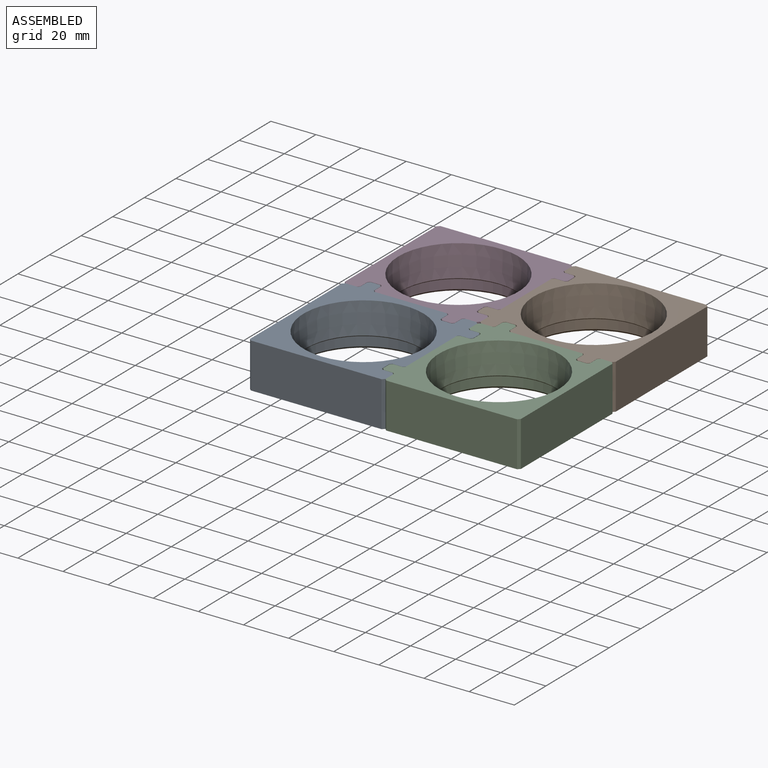
[diagram: assembled view]
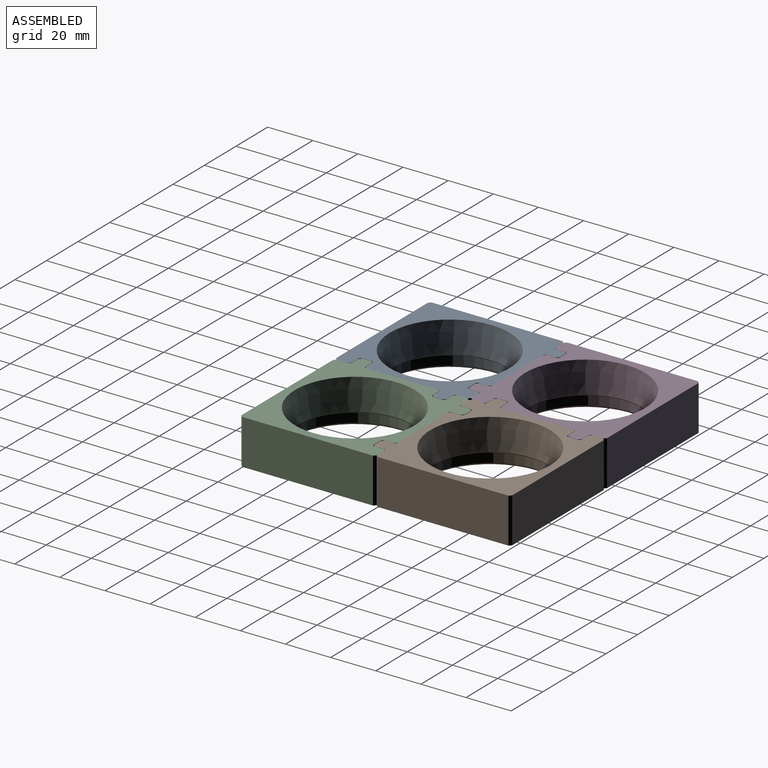
[diagram: assembled view, second angle]
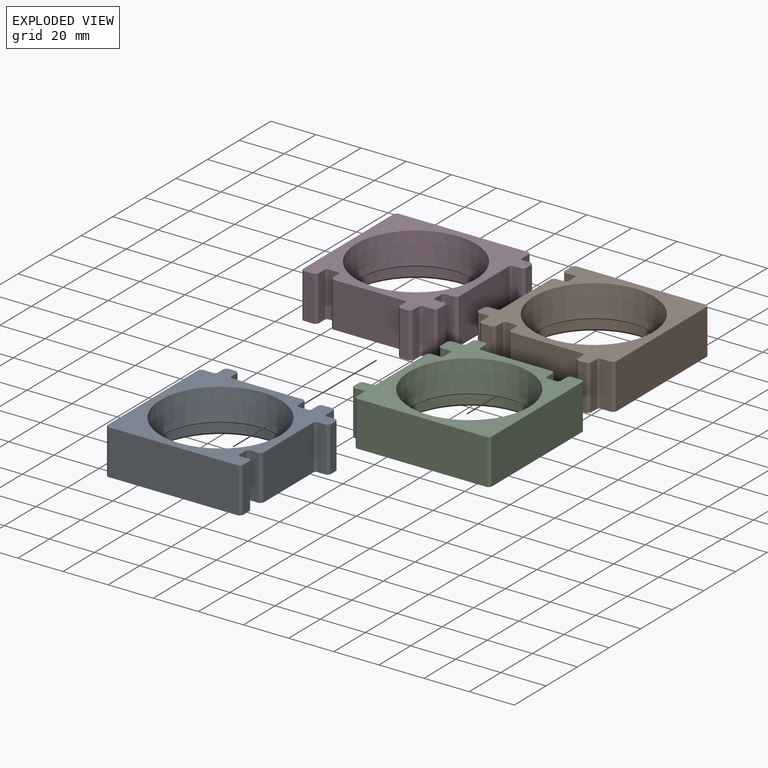
[diagram: exploded view]
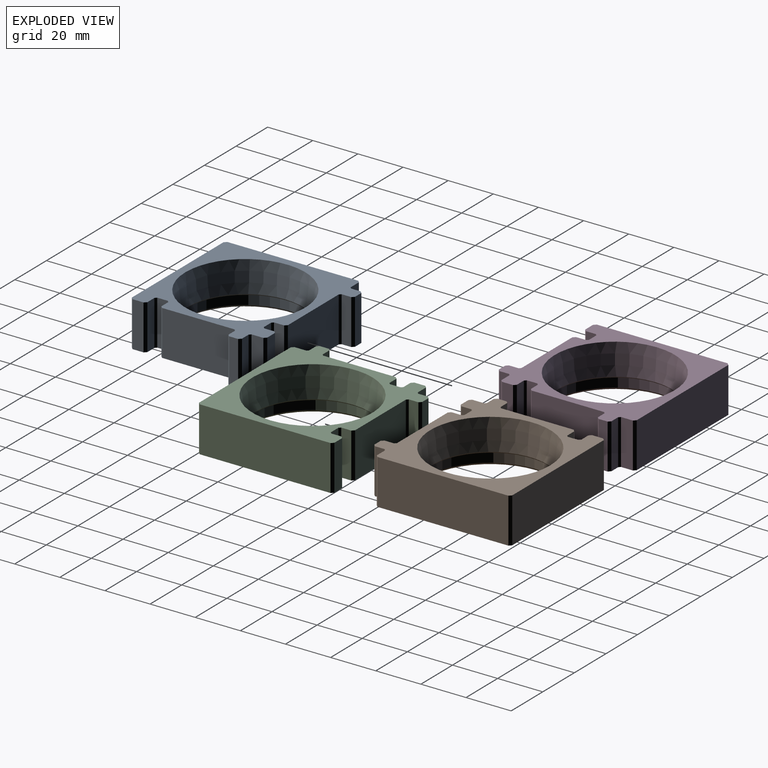
[diagram: exploded view, second angle]
ASSEMBLY  parts=4 mates=9
PART A: 47 faces, bbox 66x66x20 mm
  f0: plane 20x4.9mm, normal (0,1,0), area 98mm2, adj f20,f25,f32,f45
  f1: plane 20x4.9mm, normal (1,0,0), area 98mm2, adj f20,f25,f33,f46
  f2: plane 32.15x20mm, normal (0,1,0), area 643mm2, adj f20,f25,f31,f42
  f3: plane 32.15x20mm, normal (1,0,0), area 643mm2, adj f20,f25,f34,f37
  f4: cone r=24.8mm half-angle=5deg, axis (0,0,1), area 2210.7mm2, adj f25,f26
  f5: plane 20x5.25mm, normal (0,1,0), area 105mm2, adj f20,f25,f41,f44
  f6: plane 58x20mm, normal (0,-1,0), area 1160mm2, adj f20,f25,f43,f46
  f7: plane 20x5.25mm, normal (1,0,0), area 105mm2, adj f20,f25,f38,f45
  f8: plane 20x4.25mm, normal (0,1,0), area 85mm2, adj f20,f25,f29,f38
  f9: plane 20x4.25mm, normal (0,-1,0), area 85mm2, adj f20,f25,f30,f37
  f10: plane 20x4mm, normal (1,0,0), area 80mm2, adj f20,f25,f29,f30
  f11: plane 20x4.25mm, normal (1,0,0), area 85mm2, adj f20,f25,f27,f42
  f12: plane 20x4mm, normal (0,1,0), area 80mm2, adj f20,f25,f27,f28
  f13: plane 20x4.25mm, normal (-1,0,0), area 85mm2, adj f20,f25,f28,f41
  f14: plane 20x4.45mm, normal (0,-1,0), area 89mm2, adj f20,f25,f34,f35
  f15: plane 20x4.7mm, normal (1,0,0), area 94mm2, adj f20,f25,f35,f36
  f16: plane 20x4.45mm, normal (0,1,0), area 89mm2, adj f20,f25,f33,f36
  f17: plane 20x4.45mm, normal (1,0,0), area 89mm2, adj f20,f25,f31,f40
  f18: plane 20x4.7mm, normal (0,1,0), area 94mm2, adj f20,f25,f39,f40
  f19: plane 20x4.45mm, normal (-1,0,0), area 89mm2, adj f20,f25,f32,f39
  f20: plane 66x66mm, normal (0,0,-1), area 976.6mm2, adj f0,f1,f2,f3,f5,f6,f7,f8
  f21: plane 58x20mm, normal (-1,0,0), area 1160mm2, adj f20,f25,f43,f44
  f22: cylinder r=27.85mm len=55.7mm, axis (0,0,-1), area 874.9mm2, adj f23,f24
  f23: plane 55.7x55.7mm, normal (0,0,-1), area 341.5mm2, adj f22,f26
  f24: cone r=27.85mm half-angle=45deg, axis (0,0,-1), area 251.9mm2, adj f20,f22
  f25: plane 66x66mm, normal (0,0,1), area 1376.9mm2, adj f0,f1,f2,f3,f4,f5,f6,f7
  f26: cone r=25.37mm half-angle=42.5deg, axis (0,0,-1), area 108.7mm2, adj f4,f23
  f27: plane 20x1mm, normal (0.71,0.71,0), area 28.3mm2, adj f11,f12,f20,f25
  f28: plane 20x1mm, normal (-0.71,0.71,0), area 28.3mm2, adj f12,f13,f20,f25
  f29: plane 20x1mm, normal (0.71,0.71,0), area 28.3mm2, adj f8,f10,f20,f25
  f30: plane 20x1mm, normal (0.71,-0.71,0), area 28.3mm2, adj f9,f10,f20,f25
  f31: plane 20x1mm, normal (0.71,0.71,0), area 28.3mm2, adj f2,f17,f20,f25
  f32: plane 20x1mm, normal (-0.71,0.71,0), area 28.3mm2, adj f0,f19,f20,f25
  f33: plane 20x1mm, normal (0.71,0.71,0), area 28.3mm2, adj f1,f16,f20,f25
  f34: plane 20x1mm, normal (0.71,-0.71,0), area 28.3mm2, adj f3,f14,f20,f25
  f35: plane 20x0.75mm, normal (0.71,-0.71,0), area 21.2mm2, adj f14,f15,f20,f25
  f36: plane 20x0.75mm, normal (0.71,0.71,0), area 21.2mm2, adj f15,f16,f20,f25
  f37: plane 20x0.75mm, normal (0.71,-0.71,0), area 21.2mm2, adj f3,f9,f20,f25
  f38: plane 20x0.75mm, normal (0.71,0.71,0), area 21.2mm2, adj f7,f8,f20,f25
  f39: plane 20x0.75mm, normal (-0.71,0.71,0), area 21.2mm2, adj f18,f19,f20,f25
  f40: plane 20x0.75mm, normal (0.71,0.71,0), area 21.2mm2, adj f17,f18,f20,f25
  f41: plane 20x0.75mm, normal (-0.71,0.71,0), area 21.2mm2, adj f5,f13,f20,f25
  f42: plane 20x0.75mm, normal (0.71,0.71,0), area 21.2mm2, adj f2,f11,f20,f25
  f43: plane 20x1mm, normal (-0.71,-0.71,0), area 28.3mm2, adj f6,f20,f21,f25
  f44: plane 20x1mm, normal (-0.71,0.71,0), area 28.3mm2, adj f5,f20,f21,f25
  f45: plane 20x1mm, normal (0.71,0.71,0), area 28.3mm2, adj f0,f7,f20,f25
  f46: plane 20x1mm, normal (0.71,-0.71,0), area 28.3mm2, adj f1,f6,f20,f25
PART B: same geometry as A
PART C: same geometry as A
PART D: same geometry as A
PLACE A t=(-181.17,-48.06,14.57)mm
PLACE B rot(axis=(0,0,-1),180deg) t=(-121.17,11.94,14.57)mm
PLACE C rot(axis=(0,0,1),90deg) t=(-121.17,-48.06,14.57)mm
PLACE D rot(axis=(0,0,-1),90deg) t=(-181.17,11.94,14.57)mm
MATE planar B.f2 <-> C.f3  axis (0,-1,0) through (-120.99,-18.06,24.57)mm
MATE planar B.f3 <-> D.f2  axis (-1,0,0) through (-151.17,11.76,24.57)mm
MATE planar D.f25 <-> A.f25  axis (0,0,1) through (-203.52,-11.86,34.57)mm
MATE planar B.f25 <-> C.f25  axis (0,0,1) through (-151.17,-11.81,34.57)mm
MATE planar C.f21 <-> A.f6  axis (0,-1,0) through (-121.17,-78.06,24.57)mm
MATE planar B.f25 <-> D.f25  axis (0,0,1) through (-151.17,-4.31,34.57)mm
MATE planar A.f3 <-> C.f2  axis (1,0,0) through (-151.17,-47.89,24.57)mm
MATE planar D.f3 <-> A.f2  axis (0,-1,0) through (-180.99,-18.06,24.57)mm
MATE planar C.f6 <-> B.f21  axis (1,0,0) through (-91.17,-48.06,24.57)mm
